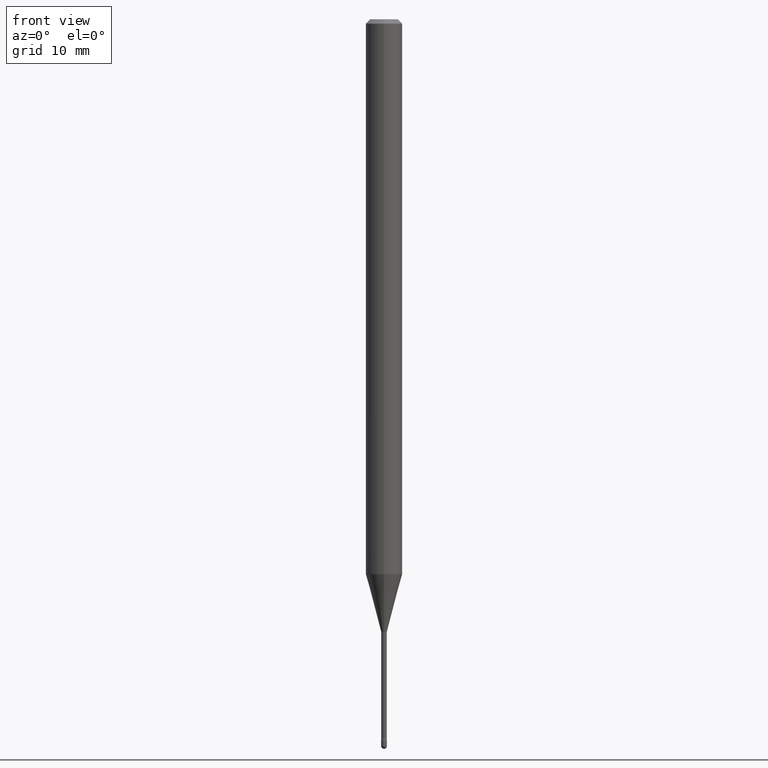
[diagram: clean part render]
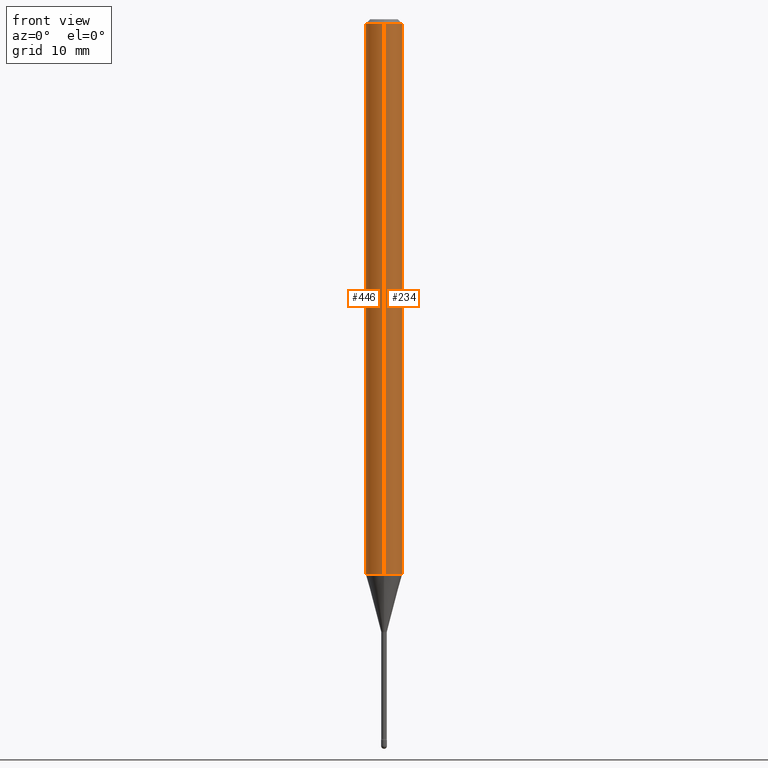
[diagram: same view with one multi-face feature highlighted, each face labeled with its STEP entity id]
A machine part, front view. The highlighted faces form ONE feature: a constant-radius fillet chain: 2 tangent blend faces with common blend radius 1.5875 mm. The faces share edges in the B-rep.
Their STEP definitions:
[1] entity #446 (Cylinder):
#27 = DIRECTION ( 'NONE',  ( -2.445514680004829566E-29, 3.491415644922369221E-15, 1.000000000000000000 ) ) ;
#31 = CARTESIAN_POINT ( 'NONE',  ( -4.364351673553451266E-16, -0.06250000000000664746, -1.901828102118092945 ) ) ;
#38 = EDGE_CURVE ( 'NONE', #356, #562, #61, .T. ) ;
#61 = LINE ( 'NONE', #484, #511 ) ;
#74 = CIRCLE ( 'NONE', #155, 0.06250000000000000000 ) ;
#77 = DIRECTION ( 'NONE',  ( -6.982962677686265922E-15, -1.000000000000000000, 3.483106191921935554E-15 ) ) ;
#98 = CARTESIAN_POINT ( 'NONE',  ( -4.364351673553912750E-16, -0.06250000000000005551, -0.01499999999999986587 ) ) ;
#130 = CARTESIAN_POINT ( 'NONE',  ( 4.650948542575521026E-29, -6.640072389688127985E-15, -1.901828102118093167 ) ) ;
#133 = DIRECTION ( 'NONE',  ( -2.445514680004829847E-29, 3.491415644922369221E-15, 1.000000000000000000 ) ) ;
#155 = AXIS2_PLACEMENT_3D ( 'NONE', #461, #458, #77 ) ;
#168 = EDGE_CURVE ( 'NONE', #392, #562, #74, .T. ) ;
#182 = VERTEX_POINT ( 'NONE', #412 ) ;
#200 = DIRECTION ( 'NONE',  ( -6.982962677686265922E-15, -1.000000000000000000, 4.370956789862821150E-15 ) ) ;
#246 = LINE ( 'NONE', #520, #426 ) ;
#275 = ORIENTED_EDGE ( 'NONE', *, *, #381, .T. ) ;
#278 = CYLINDRICAL_SURFACE ( 'NONE', #513, 0.06250000000000000000 ) ;
#282 = CARTESIAN_POINT ( 'NONE',  ( 4.440892098501093562E-16, 0.06249999999999993755, -0.01500000000000030129 ) ) ;
#291 = ORIENTED_EDGE ( 'NONE', *, *, #168, .F. ) ;
#339 = EDGE_LOOP ( 'NONE', ( #399, #275, #560, #291 ) ) ;
#348 = DIRECTION ( 'NONE',  ( -2.445514680004829847E-29, 3.491415644922369221E-15, 1.000000000000000000 ) ) ;
#356 = VERTEX_POINT ( 'NONE', #31 ) ;
#371 = DIRECTION ( 'NONE',  ( -6.982962677686265922E-15, -1.000000000000000000, 3.491415644922369221E-15 ) ) ;
#381 = EDGE_CURVE ( 'NONE', #182, #356, #398, .T. ) ;
#389 = AXIS2_PLACEMENT_3D ( 'NONE', #130, #452, #200 ) ;
#392 = VERTEX_POINT ( 'NONE', #282 ) ;
#398 = CIRCLE ( 'NONE', #389, 0.06250000000000000000 ) ;
#399 = ORIENTED_EDGE ( 'NONE', *, *, #503, .F. ) ;
#409 = CARTESIAN_POINT ( 'NONE',  ( -1.169113584055446105E-44, 1.669184350826100908E-30, 4.780733988912460139E-16 ) ) ;
#412 = CARTESIAN_POINT ( 'NONE',  ( 4.440892098501090604E-16, 0.06249999999999335948, -1.901828102118093389 ) ) ;
#426 = VECTOR ( 'NONE', #133, 39.37007874015748143 ) ;
#446 = ADVANCED_FACE ( 'NONE', ( #502 ), #278, .T. ) ;
#452 = DIRECTION ( 'NONE',  ( -2.445514680004829566E-29, 3.491415644922369221E-15, 1.000000000000000000 ) ) ;
#458 = DIRECTION ( 'NONE',  ( -2.445514680004829566E-29, 3.491415644922369221E-15, 1.000000000000000000 ) ) ;
#461 = CARTESIAN_POINT ( 'NONE',  ( 3.668272020007264791E-31, -5.237123467383583267E-17, -0.01500000000000008271 ) ) ;
#484 = CARTESIAN_POINT ( 'NONE',  ( -4.364351673553916201E-16, -0.06250000000000000000, 6.962868766988940903E-16 ) ) ;
#502 = FACE_OUTER_BOUND ( 'NONE', #339, .T. ) ;
#503 = EDGE_CURVE ( 'NONE', #182, #392, #246, .T. ) ;
#511 = VECTOR ( 'NONE', #348, 39.37007874015748143 ) ;
#513 = AXIS2_PLACEMENT_3D ( 'NONE', #409, #27, #371 ) ;
#520 = CARTESIAN_POINT ( 'NONE',  ( 4.440892098500625669E-16, 0.06250000000000000000, 2.598599210835979869E-16 ) ) ;
#560 = ORIENTED_EDGE ( 'NONE', *, *, #38, .T. ) ;
#562 = VERTEX_POINT ( 'NONE', #98 ) ;
[2] entity #234 (Cylinder):
#10 = EDGE_CURVE ( 'NONE', #562, #392, #493, .T. ) ;
#14 = DIRECTION ( 'NONE',  ( -2.445514680004829566E-29, 3.491415644922369221E-15, 1.000000000000000000 ) ) ;
#31 = CARTESIAN_POINT ( 'NONE',  ( -4.364351673553451266E-16, -0.06250000000000664746, -1.901828102118092945 ) ) ;
#38 = EDGE_CURVE ( 'NONE', #356, #562, #61, .T. ) ;
#51 = DIRECTION ( 'NONE',  ( -6.982962677686265922E-15, -1.000000000000000000, 3.491415644922369221E-15 ) ) ;
#54 = ORIENTED_EDGE ( 'NONE', *, *, #503, .T. ) ;
#61 = LINE ( 'NONE', #484, #511 ) ;
#76 = ORIENTED_EDGE ( 'NONE', *, *, #10, .F. ) ;
#93 = CARTESIAN_POINT ( 'NONE',  ( -1.169113584055446105E-44, 1.669184350826100908E-30, 4.780733988912460139E-16 ) ) ;
#98 = CARTESIAN_POINT ( 'NONE',  ( -4.364351673553912750E-16, -0.06250000000000005551, -0.01499999999999986587 ) ) ;
#115 = AXIS2_PLACEMENT_3D ( 'NONE', #515, #137, #139 ) ;
#133 = DIRECTION ( 'NONE',  ( -2.445514680004829847E-29, 3.491415644922369221E-15, 1.000000000000000000 ) ) ;
#137 = DIRECTION ( 'NONE',  ( -2.445514680004829566E-29, 3.491415644922369221E-15, 1.000000000000000000 ) ) ;
#139 = DIRECTION ( 'NONE',  ( -6.982962677686265922E-15, -1.000000000000000000, 4.370956789862821150E-15 ) ) ;
#140 = ORIENTED_EDGE ( 'NONE', *, *, #38, .F. ) ;
#157 = CIRCLE ( 'NONE', #115, 0.06250000000000000000 ) ;
#182 = VERTEX_POINT ( 'NONE', #412 ) ;
#192 = ORIENTED_EDGE ( 'NONE', *, *, #258, .T. ) ;
#234 = ADVANCED_FACE ( 'NONE', ( #472 ), #388, .T. ) ;
#246 = LINE ( 'NONE', #520, #426 ) ;
#258 = EDGE_CURVE ( 'NONE', #356, #182, #157, .T. ) ;
#281 = AXIS2_PLACEMENT_3D ( 'NONE', #396, #14, #565 ) ;
#282 = CARTESIAN_POINT ( 'NONE',  ( 4.440892098501093562E-16, 0.06249999999999993755, -0.01500000000000030129 ) ) ;
#296 = EDGE_LOOP ( 'NONE', ( #192, #54, #76, #140 ) ) ;
#348 = DIRECTION ( 'NONE',  ( -2.445514680004829847E-29, 3.491415644922369221E-15, 1.000000000000000000 ) ) ;
#353 = AXIS2_PLACEMENT_3D ( 'NONE', #93, #534, #51 ) ;
#356 = VERTEX_POINT ( 'NONE', #31 ) ;
#388 = CYLINDRICAL_SURFACE ( 'NONE', #353, 0.06250000000000000000 ) ;
#392 = VERTEX_POINT ( 'NONE', #282 ) ;
#396 = CARTESIAN_POINT ( 'NONE',  ( 3.668272020007264791E-31, -5.237123467383583267E-17, -0.01500000000000008271 ) ) ;
#412 = CARTESIAN_POINT ( 'NONE',  ( 4.440892098501090604E-16, 0.06249999999999335948, -1.901828102118093389 ) ) ;
#426 = VECTOR ( 'NONE', #133, 39.37007874015748143 ) ;
#472 = FACE_OUTER_BOUND ( 'NONE', #296, .T. ) ;
#484 = CARTESIAN_POINT ( 'NONE',  ( -4.364351673553916201E-16, -0.06250000000000000000, 6.962868766988940903E-16 ) ) ;
#493 = CIRCLE ( 'NONE', #281, 0.06250000000000000000 ) ;
#503 = EDGE_CURVE ( 'NONE', #182, #392, #246, .T. ) ;
#511 = VECTOR ( 'NONE', #348, 39.37007874015748143 ) ;
#515 = CARTESIAN_POINT ( 'NONE',  ( 4.650948542575521026E-29, -6.640072389688127985E-15, -1.901828102118093167 ) ) ;
#520 = CARTESIAN_POINT ( 'NONE',  ( 4.440892098500625669E-16, 0.06250000000000000000, 2.598599210835979869E-16 ) ) ;
#534 = DIRECTION ( 'NONE',  ( -2.445514680004829566E-29, 3.491415644922369221E-15, 1.000000000000000000 ) ) ;
#562 = VERTEX_POINT ( 'NONE', #98 ) ;
#565 = DIRECTION ( 'NONE',  ( -6.982962677686265922E-15, -1.000000000000000000, 3.483106191921935554E-15 ) ) ;